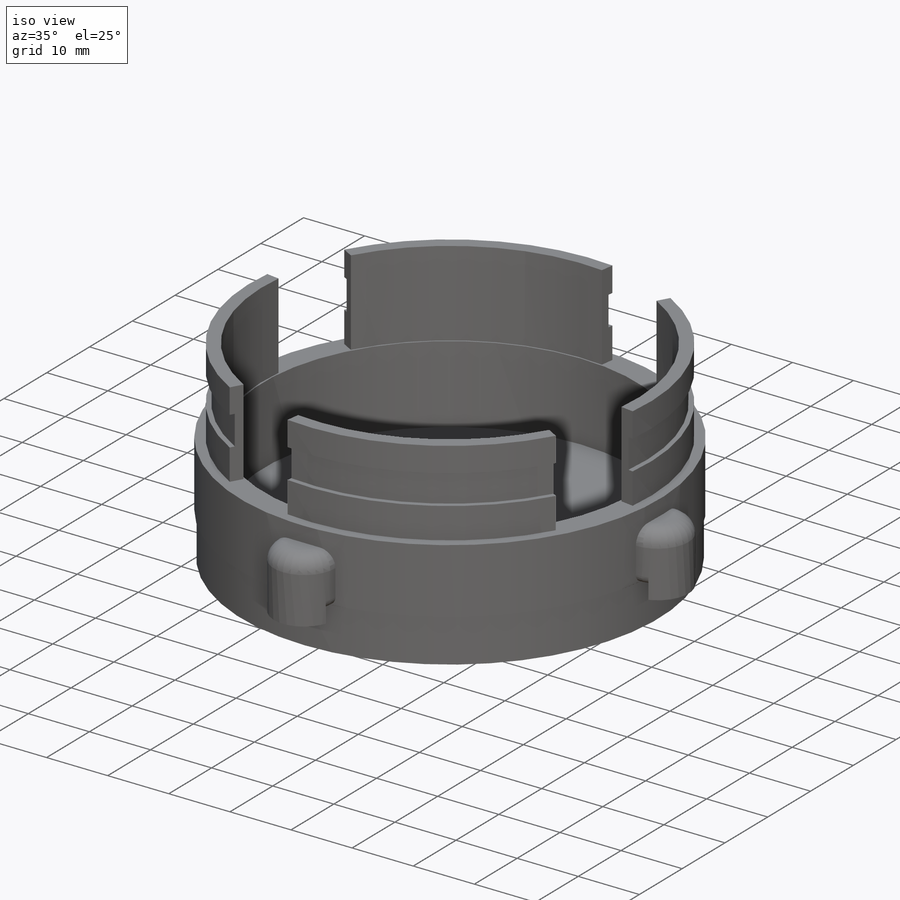
[diagram: iso view]
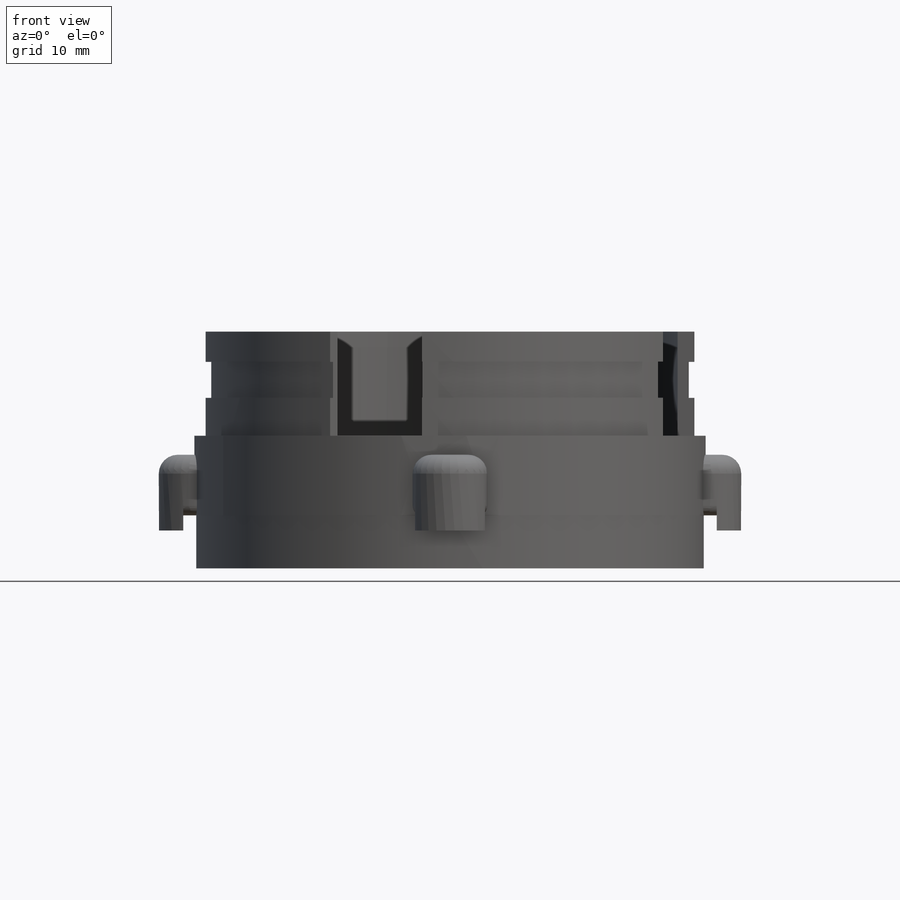
[diagram: front view]
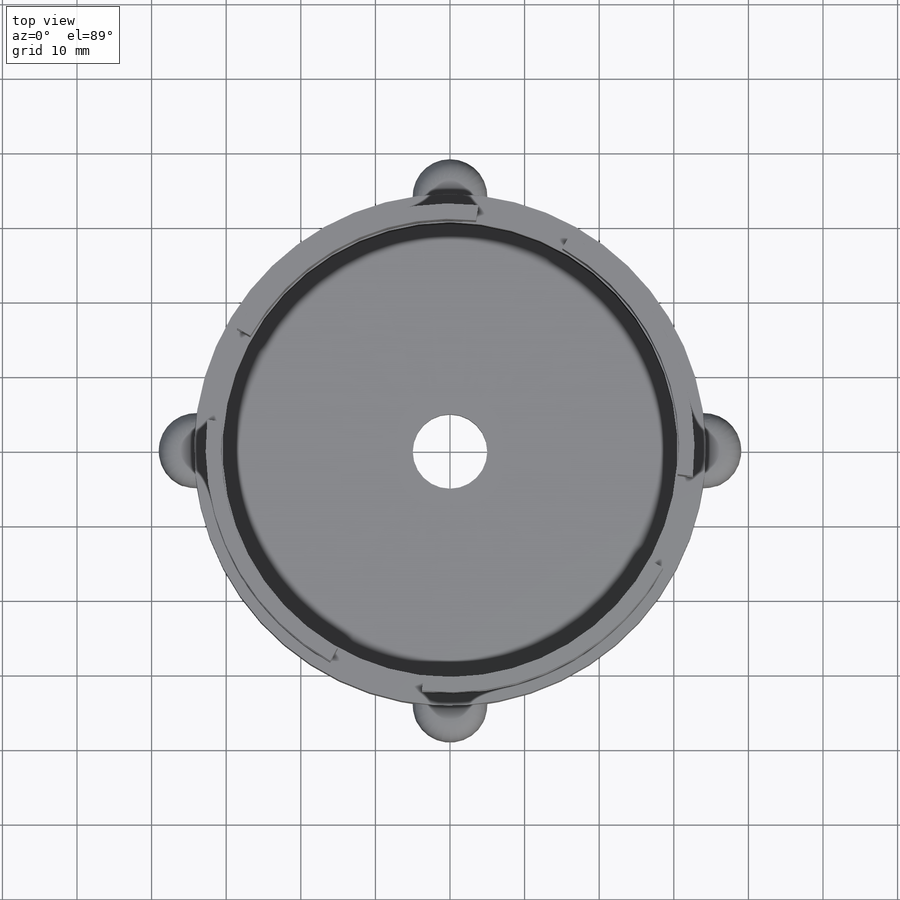
[diagram: top view]
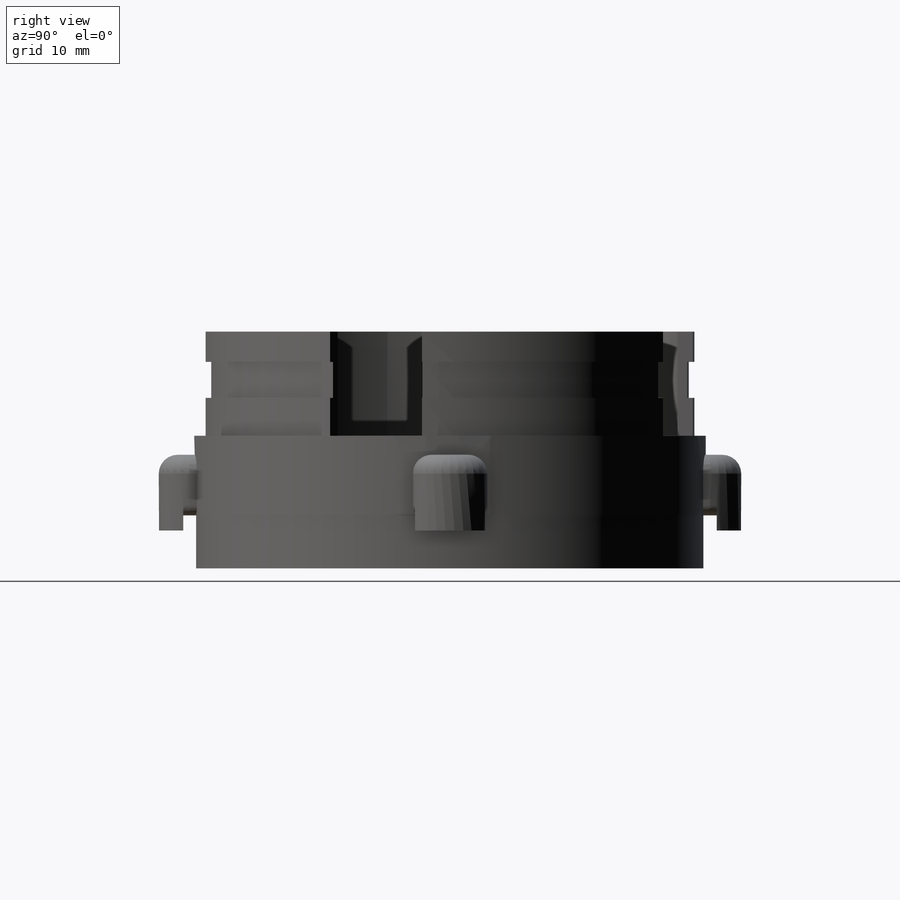
[diagram: right view]
SOLIDWORKS PART (.sldprt)
format: sldprt  version: not decoded by parser v0  size: 386,048 bytes
history: native  units: mm
features: sketch x7, extrude x4, cut_extrude x2, fillet x2, material x1 (+13 scaffold rows collapsed)
feature tree (29):
  scaffold x13  (default folders/planes/origin — collapsed)
  material  "Material <not specified>"
  sketch  "Sketch1"  dims[D1=26.9875mm]
  sketch  "Sketch3"  dims[D1=60.96mm D2=3.81mm]
  extrude  "Boss-Extrude2"  Depth=12.7mm
  sketch  "Sketch5"  dims[c1.D1=60.452mm c1.D2=2.54mm c2.D1=2.032mm c2.D2=4.0]
  extrude  "Boss-Extrude6"  Depth=26.67mm
  sketch  "Sketch7"  dims[D1=68.072mm D2=2.032mm]
  cut_extrude  "Cut-Extrude2"  Depth=4.826mm
  sketch  "Sketch8"  dims[D1=68.072mm D2=10.0mm]
  extrude  "Boss-Extrude7"  Depth=5.08mm
  sketch  "Sketch10"  dims[D1=68.072mm D2=2.032mm]
  extrude  "Boss-Extrude8"  Depth=10.16mm
  fillet  "Fillet1"  Radius=2.54mm
  sketch  "Sketch11"  dims[D1=68.072mm D2=2.032mm]
  cut_extrude  "Cut-Extrude3"  Depth=2.032mm
  fillet  "Fillet2"  Radius=1.27mm
decode coverage: 15 of 15 modeling features carry decoded parameters
note: suppression state not decoded; provenance and decode notes live in map.json
